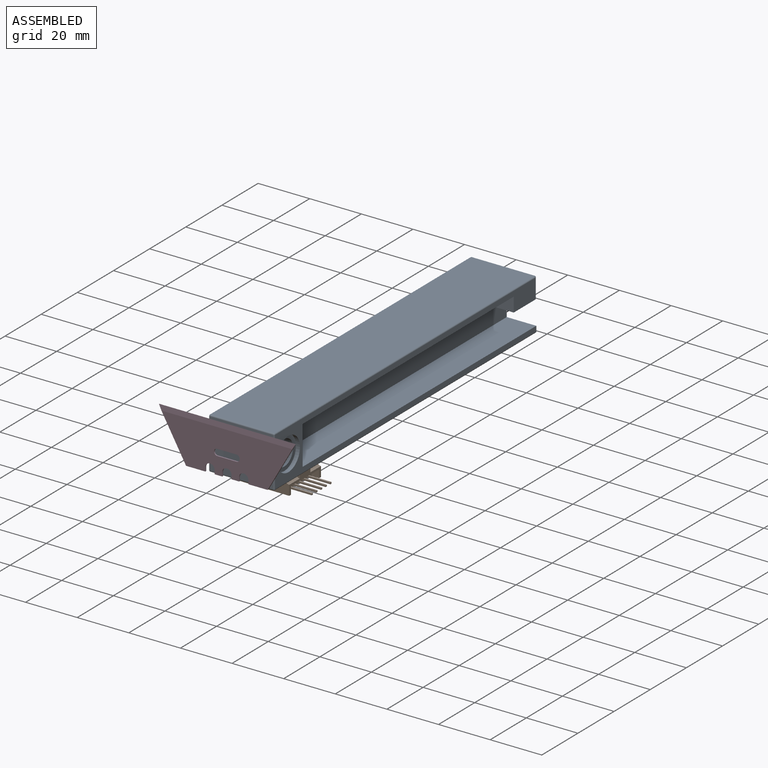
[diagram: assembled view]
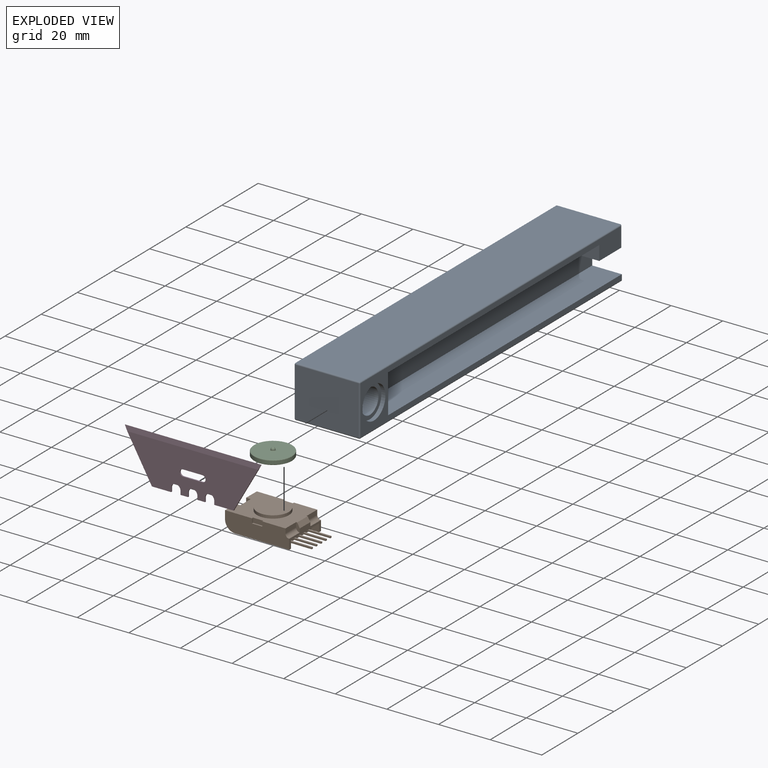
[diagram: exploded view]
GUIDED TOUR — MATED ASSEMBLY (Onshape document edd11f7d41147a7c09eb9f6d, AutoMate assembly edd11f7d41147a7c09eb9f6d_00da61188a9bc0fff5a41f66_b8125065b8a133a79864f5e6_default)

This assembly has 4 components, labeled P0..P3 below (a component is one placed occurrence of a part; the same part can appear more than once), held together by 4 mates. A mate is a constraint between two components; its type names the relative motion it leaves free:
  CYLINDRICAL — leaves both rotation about and translation along the listed axis free,
  PARALLEL — keeps the two listed directions parallel,
  PLANAR — leaves sliding in the plane through the listed point (normal = the listed direction) and rotation about that normal free.
Axis/direction vectors are unit vectors and 'through' points are millimeter coordinates, both in the assembly's world frame.

MATES
  1. CYLINDRICAL "Cylindrical 1": P1 <-> P2, axis (0.000, 0.000, 1.000) through (16.44, 24.86, -26.45) mm
  2. PLANAR "Planar 2": P3 <-> P0, direction (0.000, 1.000, 0.000) through (16.80, -0.68, -15.58) mm
  3. PLANAR "Planar 3": P1 <-> P2, direction (0.000, 0.000, 1.000) through (16.44, 24.86, -26.45) mm
  4. PARALLEL "Parallel 1": P2 <-> P0, direction (0.000, 0.000, 1.000) through (16.44, 24.86, -25.45) mm

ASSEMBLY ORDER
  1. P2 — the base component [order verified]
  2. P1 [order verified]
  3. P0 [order verified]
  4. P3 [order verified]
(P1 verified with a relaxed clearance tolerance: the source model stores slight part interference there.)
Order-tag legend:
  [order verified] — this step's position reverses a verified removal order: the component was checked to insert without passing through the ones already placed.

Of the 4 components, 2 carry the full construction recipe — the FeatureScript program that regenerates the part's solid from scratch; the rest are supplied as boundary geometry only.
Each toured component is shown spotlighted twice — in the assembled view, then in the exploded view, where a leader line traces a displaced component back to its assembled socket (saturated green if recipe-attached, orange if geometry-only; every other component desaturated gray) — followed by its recipe or geometry summary and the mates that hold it.
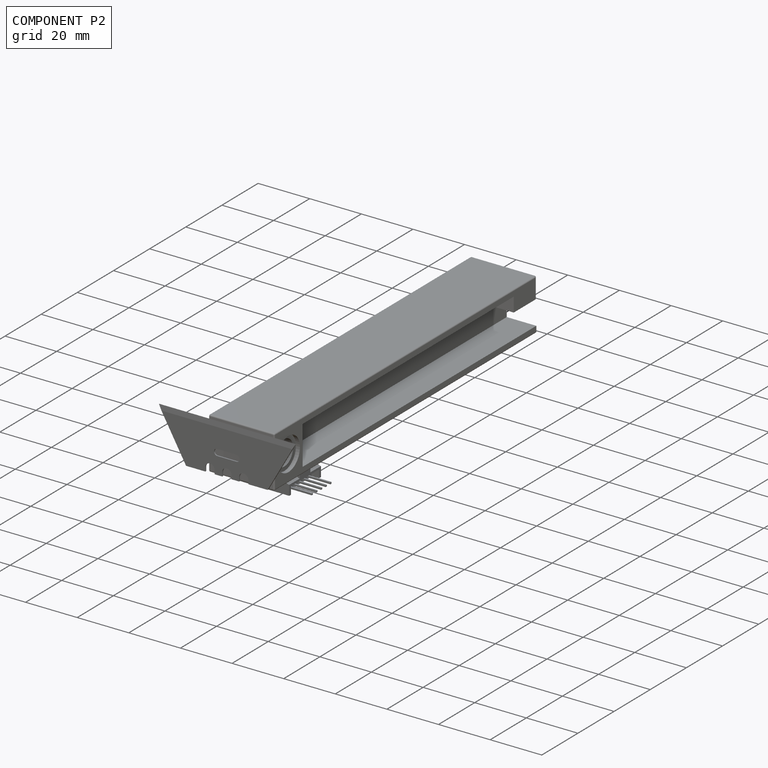
[diagram: component P2 — assembled]
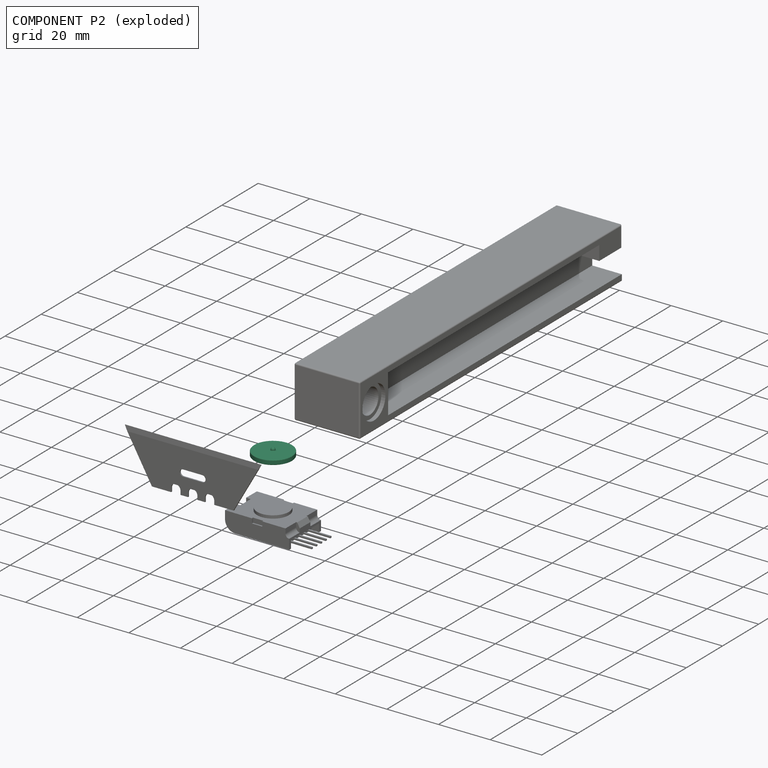
[diagram: component P2 — exploded]
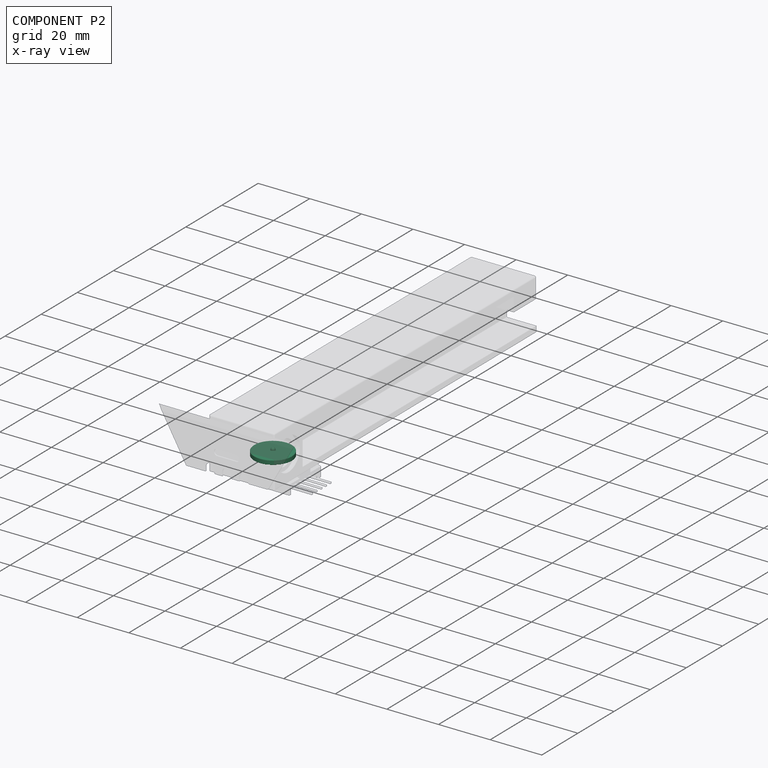
[diagram: component P2 — x-ray view]
COMPONENT P2 — recipe-attached (CADFS 00927021, mesh-verified: the recipe's output STEP matches this component's geometry to below the mesh-comparison resolution (tessellation chordal tolerance ~0.0315 mm)).
Held by: CYLINDRICAL mate "Cylindrical 1" to P1; PLANAR mate "Planar 3" to P1; PARALLEL mate "Parallel 1" to P0.
Construction recipe (FeatureScript — the CAD program that rebuilds this solid; sketch coordinates are in the units given by the * unit suffixes, e.g. mm):

FeatureScript 1549;
import(path : "onshape/std/geometry.fs", version : "1549.0");
import(path : "onshape/std/common.fs", version : "1549.0");
const mm = millimeter;
const VERTEX = EntityType.VERTEX;
const EDGE = EntityType.EDGE;
const FACE = EntityType.FACE;
const BODY = EntityType.BODY;
function v(x, y){return vector(x, y);}
function OD(order){return orderDisambiguation(order);}
function OSD(set){return originalSetDisambiguation(set);}
function TD(topology){return topologyDisambiguation(topology);}
function TDD(query){return trueDependencyDisambiguation(query);}
function sQuery(a, b, c) {return sketchEntityQuery(a, b, c);}

annotation { "Feature Type Name" : "Feature", "Feature Type Description" : "" }
export const myFeature = defineFeature(function(context is Context, id is Id, definition is map)
    precondition{}
    {
        {
            var Q0;
            Q0=qCreatedBy(makeId("Front.planeOp"),FACE);
            var sketch = newSketch(context, id + "F0", { "sketchPlane" : qUnion([Q0])});
            skLineSegment(sketch, "E0", {"start": v(0, 0) * mm, "end": v(0, 1) * mm});
            skLineSegment(sketch, "E1", {"start": v(0, 1) * mm, "end": v(-7.35, 1) * mm});
            skLineSegment(sketch, "E2", {"start": v(-7.35, 1) * mm, "end": v(-7.35, -0.8) * mm});
            skLineSegment(sketch, "E3", {"start": v(-7.35, -0.8) * mm, "end": v(-6.35, -0.8) * mm});
            skLineSegment(sketch, "E4", {"start": v(-6.35, -0.8) * mm, "end": v(-6.35, 0) * mm});
            skLineSegment(sketch, "E5", {"start": v(-6.35, 0) * mm, "end": v(0, 0) * mm});
            skLineSegment(sketch, "E6.bottom", {"start": v(0, 1) * mm, "end": v(-0.8, 1) * mm});
            skLineSegment(sketch, "E6.top", {"start": v(0, 1.4) * mm, "end": v(-0.8, 1.4) * mm});
            skLineSegment(sketch, "E6.left", {"start": v(0, 1) * mm, "end": v(0, 1.4) * mm});
            skLineSegment(sketch, "E6.right", {"start": v(-0.8, 1) * mm, "end": v(-0.8, 1.4) * mm});
            skArc(sketch, "E7", {"start": v(-0.8, 1.4) * mm, "mid": v(-0.57, 1.97) * mm, "end": v(0, 2.2) * mm});
            skLineSegment(sketch, "E8", {"start": v(0, 2.2) * mm, "end": v(0, 1.4) * mm});
            skSolve(sketch);
        }
        {
            var Q0;
            {var subQ2=sQuery(id+"F0.wireOp",EDGE,"E0");Q0=makeQuery(id+"F0.imprint","IMPRINT",FACE,{"disambiguationData":[TD([[makeQuery(id+"F0.imprint","IMPRINT",EDGE,{"derivedFrom":subQ2}),1.0]])]});}
            var Q1;
            {var subQ0=sQuery(id+"F0.wireOp",EDGE,"wYFL7p8j-TeGG-kjCM-6JJ2-xih8vC0nYGVt");Q1=makeQuery(id+"F0.imprint","IMPRINT",FACE,{"disambiguationData":[TD([[makeQuery(id+"F0.imprint","IMPRINT",EDGE,{"derivedFrom":subQ0}),1.0]])]});}
            var Q2;
            Q2=makeQuery(id+"F0.imprint","IMPRINT",FACE,{"disambiguationData":[TD([[makeQuery(id+"F0.imprint","IMPRINT",EDGE,{"derivedFrom":sQuery(id+"F0.wireOp",EDGE,"E6.top")}),1.0]])]});
            var Q3;
            Q3=makeQuery(id+"F0.imprint","IMPRINT",FACE,{"disambiguationData":[TD([[makeQuery(id+"F0.imprint","IMPRINT",EDGE,{"derivedFrom":sQuery(id+"F0.wireOp",EDGE,"E6.top")}),-1.0]])]});
            var Q4;
            Q4=sQuery(id+"F0.wireOp",EDGE,"E0");
            revolve(context, id + "F1", {"entities" : qUnion([Q0, Q1, Q2, Q3]), "axis" : qUnion([Q4]), "revolveType" : RevolveType.FULL, "surfaceOperationType" : NewSurfaceOperationType.NEW});
        }
        {
            var Q0;
            Q0=makeQuery(id+"F1.opRevolve","SWEPT_EDGE",EDGE,{"disambiguationData":[OSD([sQuery(id+"F0.wireOp",EDGE,"E1"),sQuery(id+"F0.wireOp",EDGE,"E2")])]});
            var Q1;
            Q1=makeQuery(id+"F1.opRevolve","SWEPT_EDGE",EDGE,{"disambiguationData":[OSD([sQuery(id+"F0.wireOp",EDGE,"E2"),sQuery(id+"F0.wireOp",EDGE,"E3")])]});
            var Q2;
            Q2=makeQuery(id+"F1.opRevolve","SWEPT_EDGE",EDGE,{"disambiguationData":[OSD([sQuery(id+"F0.wireOp",EDGE,"E3"),sQuery(id+"F0.wireOp",EDGE,"E4")])]});
            fillet(context, id + "F2", {"entities" : qUnion([Q0, Q1, Q2]), "radius" : 0.2 * mm, "tangentPropagation" : true, "allowEdgeOverflow" : false});
        }
        {
            var Q0;
            Q0=makeQuery(id+"F1.opRevolve","SWEPT_EDGE",EDGE,{"disambiguationData":[OSD([sQuery(id+"F0.wireOp",EDGE,"E1"),sQuery(id+"F0.wireOp",EDGE,"E6.right")])]});
            fillet(context, id + "F3", {"entities" : qUnion([Q0]), "radius" : 0.3 * mm, "tangentPropagation" : true, "allowEdgeOverflow" : false});
        }
    });
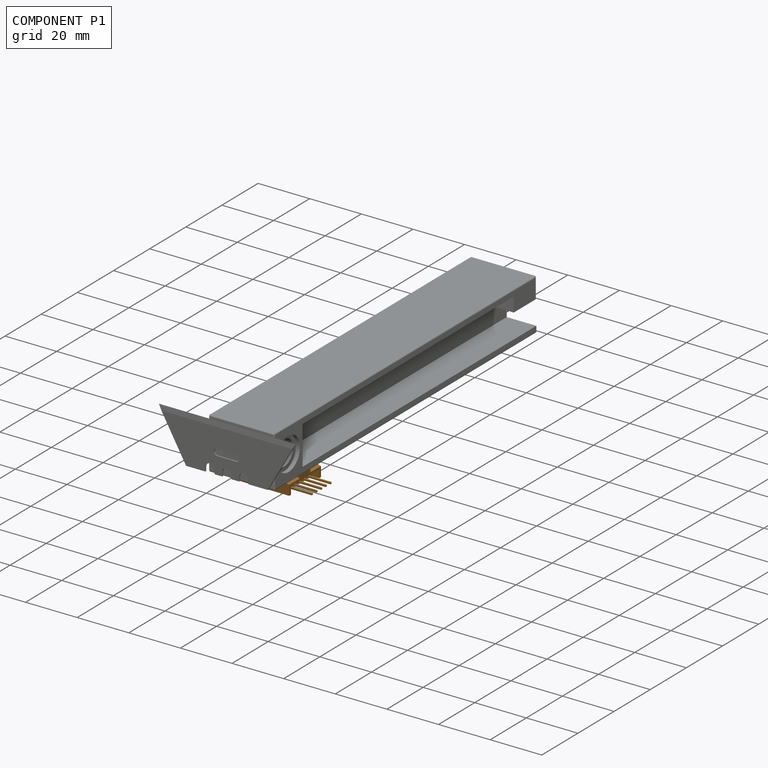
[diagram: component P1 — assembled]
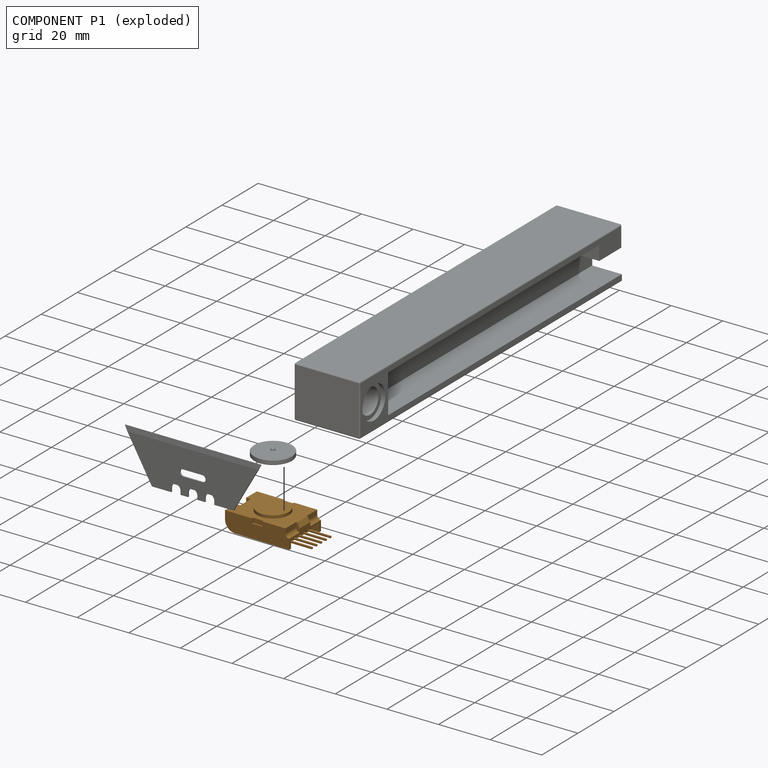
[diagram: component P1 — exploded]
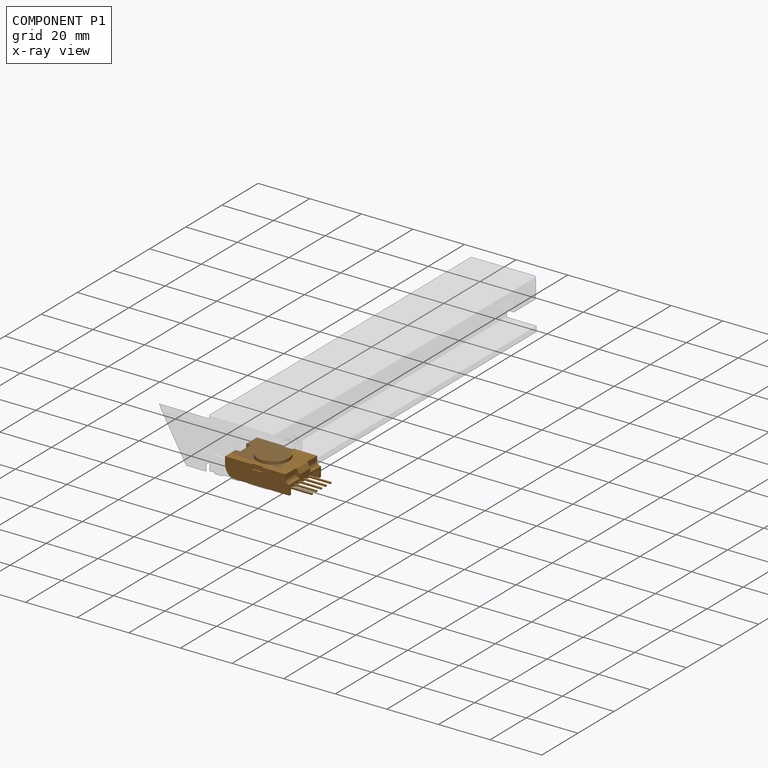
[diagram: component P1 — x-ray view]
COMPONENT P1 — geometry summary (no construction recipe available for this part):
  bounding box: 31.5 x 17.4 x 8.3 mm
  B-rep topology: 1 solid, 58 faces, 300 edges
  volume: 2942 mm^3 (65% of its bounding box)
  symmetry: mirror-symmetric across its y mid-plane
Held by: CYLINDRICAL mate "Cylindrical 1" to P2; PLANAR mate "Planar 3" to P2.
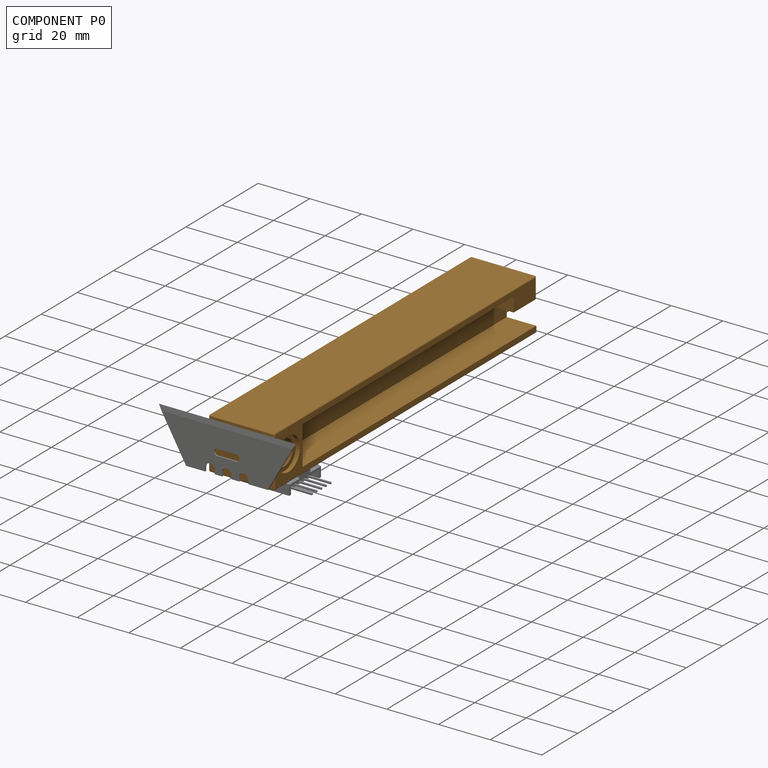
[diagram: component P0 — assembled]
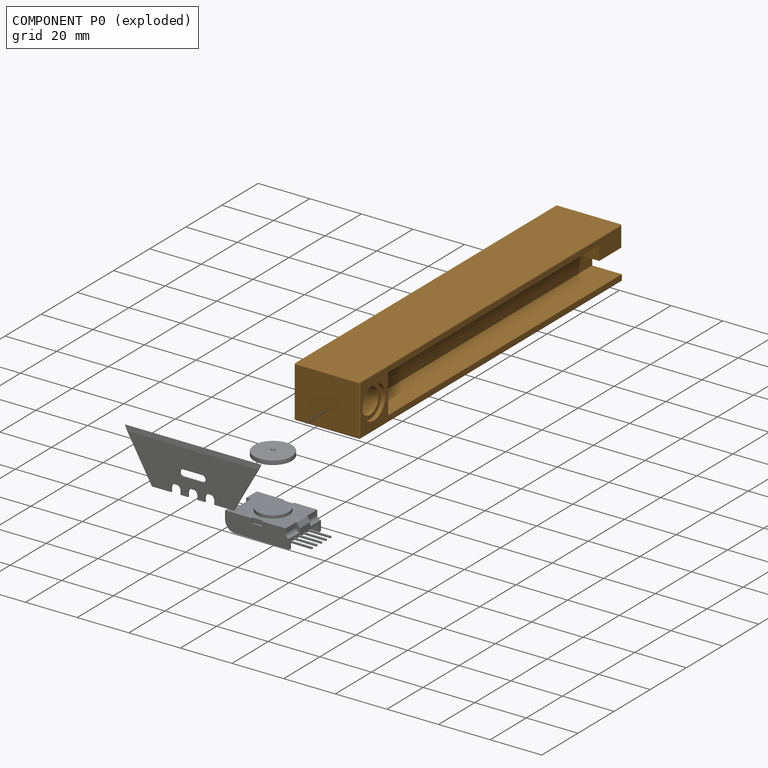
[diagram: component P0 — exploded]
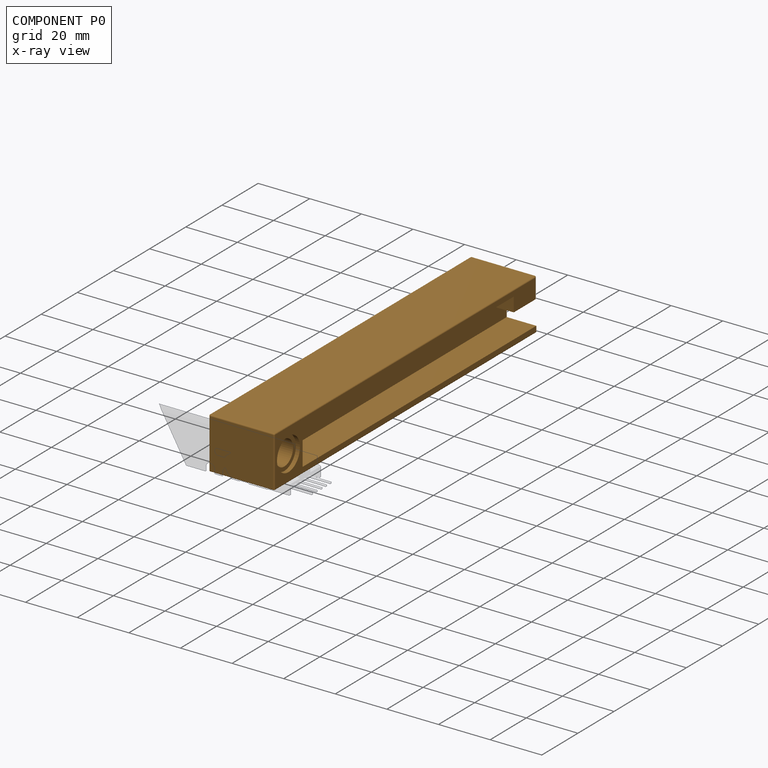
[diagram: component P0 — x-ray view]
COMPONENT P0 — geometry summary (no construction recipe available for this part):
  bounding box: 145.0 x 25.4 x 20.0 mm
  B-rep topology: 1 solid, 52 faces, 242 edges
  volume: 28611 mm^3 (39% of its bounding box)
  symmetry: mirror-symmetric across its x mid-plane
Held by: PLANAR mate "Planar 2" to P3; PARALLEL mate "Parallel 1" to P2.
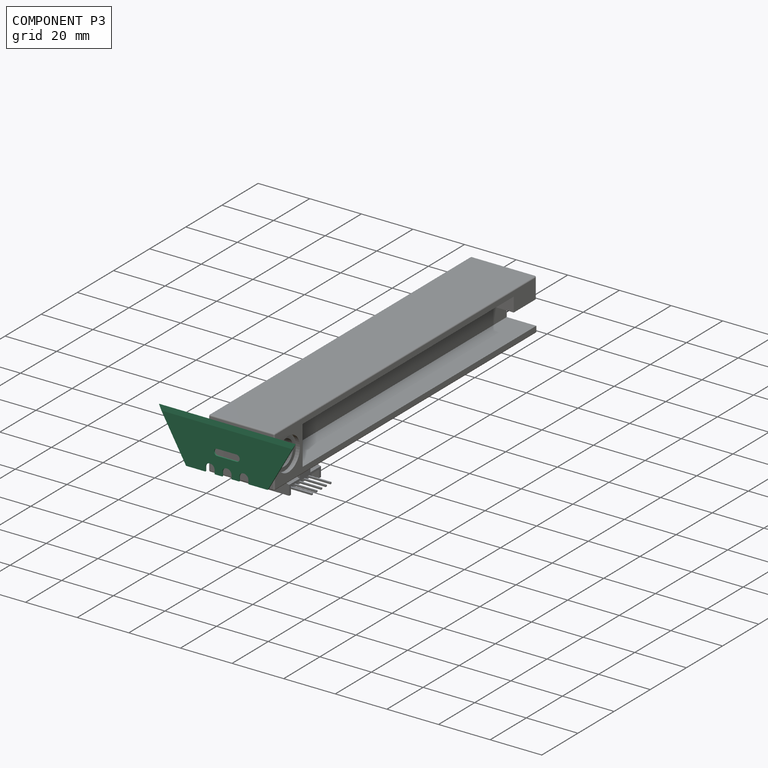
[diagram: component P3 — assembled]
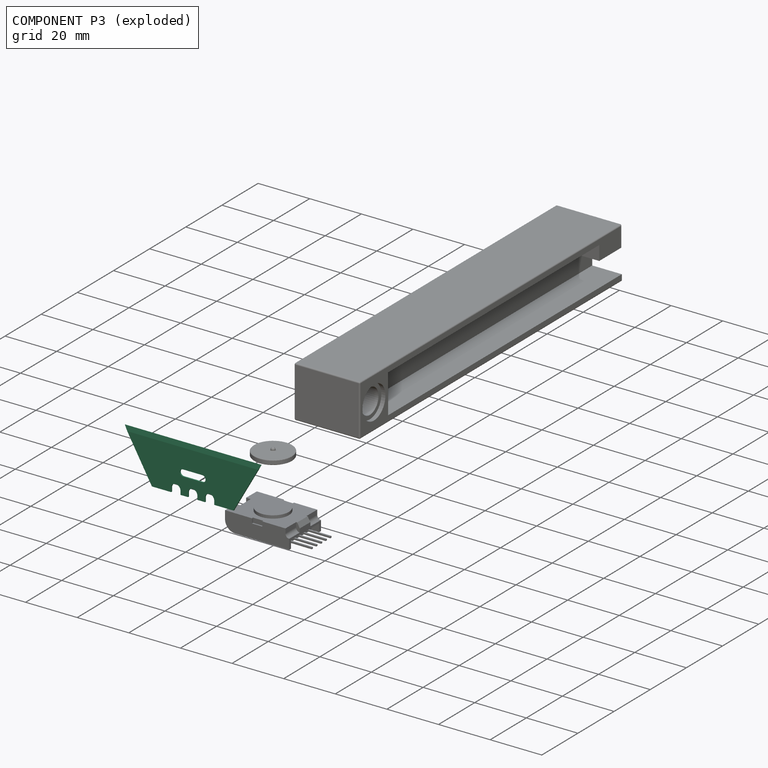
[diagram: component P3 — exploded]
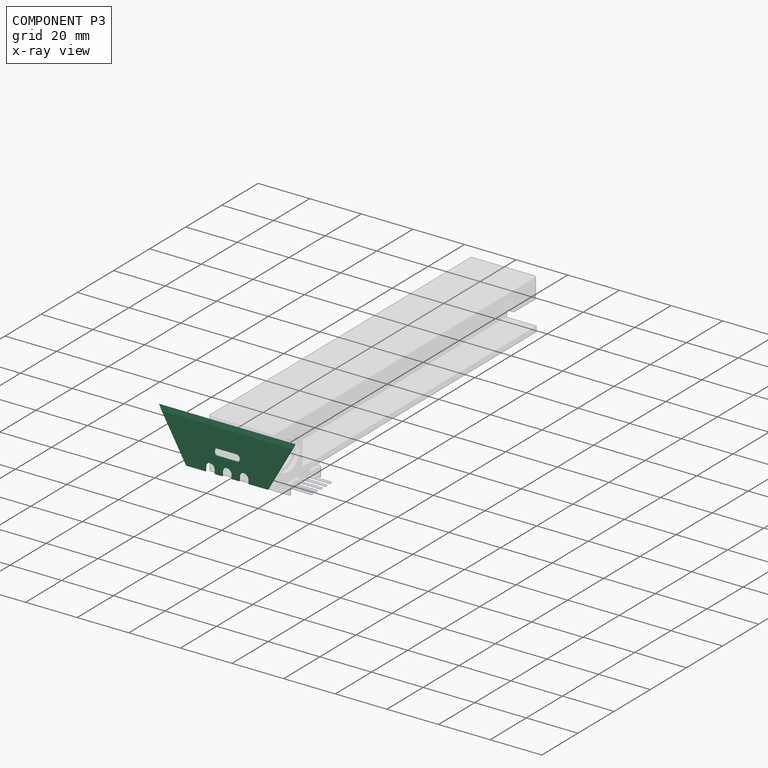
[diagram: component P3 — x-ray view]
COMPONENT P3 — recipe-attached (CADFS 00927025, mesh-verified: the recipe's output STEP matches this component's geometry to below the mesh-comparison resolution (tessellation chordal tolerance ~0.0844 mm)).
Held by: PLANAR mate "Planar 2" to P0.
Construction recipe (FeatureScript — the CAD program that rebuilds this solid; sketch coordinates are in the units given by the * unit suffixes, e.g. mm):

FeatureScript 1549;
import(path : "onshape/std/geometry.fs", version : "1549.0");
import(path : "onshape/std/common.fs", version : "1549.0");
const mm = millimeter;
const VERTEX = EntityType.VERTEX;
const EDGE = EntityType.EDGE;
const FACE = EntityType.FACE;
const BODY = EntityType.BODY;
function v(x, y){return vector(x, y);}
function OD(order){return orderDisambiguation(order);}
function OSD(set){return originalSetDisambiguation(set);}
function TD(topology){return topologyDisambiguation(topology);}
function TDD(query){return trueDependencyDisambiguation(query);}
function sQuery(a, b, c) {return sketchEntityQuery(a, b, c);}

annotation { "Feature Type Name" : "Feature", "Feature Type Description" : "" }
export const myFeature = defineFeature(function(context is Context, id is Id, definition is map)
    precondition{}
    {
        {
            var Q0;
            Q0=qCreatedBy(makeId("Front.planeOp"),FACE);
            var sketch = newSketch(context, id + "F0", { "sketchPlane" : qUnion([Q0])});
            skLineSegment(sketch, "E0", {"start": v(0, 0) * mm, "end": v(53, 0) * mm});
            skLineSegment(sketch, "E1", {"start": v(53, 0) * mm, "end": v(42.3, 18.8) * mm});
            skLineSegment(sketch, "E2", {"start": v(42.3, 18.8) * mm, "end": v(10.7, 18.8) * mm});
            skLineSegment(sketch, "E3", {"start": v(10.7, 18.8) * mm, "end": v(0, 0) * mm});
            skLineSegment(sketch, "E4", {"start": v(26.5, 18.8) * mm, "end": v(26.5, 0) * mm, "construction": true});
            skLineSegment(sketch, "E5.bottom", {"start": v(22.8, 12.14) * mm, "end": v(30.2, 12.14) * mm});
            skLineSegment(sketch, "E5.top", {"start": v(22.8, 9.62) * mm, "end": v(30.2, 9.62) * mm});
            skLineSegment(sketch, "E5.left", {"start": v(21.53, 10.88) * mm, "end": v(21.53, 10.88) * mm});
            skLineSegment(sketch, "E5.right", {"start": v(31.47, 10.88) * mm, "end": v(31.47, 10.88) * mm});
            skLineSegment(sketch, "E6", {"start": v(26.5, 12.14) * mm, "end": v(26.5, 18.8) * mm, "construction": true});
            skPoint(sketch, "E7.visualSharp", {"position": v(31.47, 12.14) * mm});
            skArc(sketch, "E7.filletArc", {"start": v(31.47, 10.88) * mm, "mid": v(31.1, 11.77) * mm, "end": v(30.2, 12.14) * mm});
            skPoint(sketch, "E8.visualSharp", {"position": v(31.47, 9.62) * mm});
            skArc(sketch, "E8.filletArc", {"start": v(30.2, 9.62) * mm, "mid": v(31.1, 9.99) * mm, "end": v(31.47, 10.88) * mm});
            skPoint(sketch, "E9.visualSharp", {"position": v(21.53, 12.14) * mm});
            skArc(sketch, "E9.filletArc", {"start": v(22.8, 12.14) * mm, "mid": v(21.9, 11.77) * mm, "end": v(21.53, 10.88) * mm});
            skPoint(sketch, "E10.visualSharp", {"position": v(21.53, 9.62) * mm});
            skArc(sketch, "E10.filletArc", {"start": v(21.53, 10.88) * mm, "mid": v(21.9, 9.99) * mm, "end": v(22.8, 9.62) * mm});
            skLineSegment(sketch, "E11.bottom", {"start": v(24.7, 18.8) * mm, "end": v(28.3, 18.8) * mm});
            skLineSegment(sketch, "E11.top", {"start": v(26.5, 15.5) * mm, "end": v(26.5, 15.5) * mm});
            skLineSegment(sketch, "E11.left", {"start": v(24.7, 18.8) * mm, "end": v(24.7, 17.3) * mm});
            skLineSegment(sketch, "E11.right", {"start": v(28.3, 18.8) * mm, "end": v(28.3, 17.3) * mm});
            skPoint(sketch, "E12.visualSharp", {"position": v(24.7, 15.5) * mm});
            skArc(sketch, "E12.filletArc", {"start": v(24.7, 17.3) * mm, "mid": v(25.23, 16.03) * mm, "end": v(26.5, 15.5) * mm});
            skPoint(sketch, "E13.visualSharp", {"position": v(28.3, 15.5) * mm});
            skArc(sketch, "E13.filletArc", {"start": v(26.5, 15.5) * mm, "mid": v(27.77, 16.03) * mm, "end": v(28.3, 17.3) * mm});
            skLineSegment(sketch, "E14", {"start": v(26.5, 18.8) * mm, "end": v(26.5, 12.14) * mm, "construction": true});
            skLineSegment(sketch, "E15.bottom", {"start": v(31.24, 18.8) * mm, "end": v(34.84, 18.8) * mm});
            skLineSegment(sketch, "E15.top", {"start": v(33.04, 15.5) * mm, "end": v(33.04, 15.5) * mm});
            skLineSegment(sketch, "E15.left", {"start": v(31.24, 18.8) * mm, "end": v(31.24, 17.3) * mm});
            skLineSegment(sketch, "E15.right", {"start": v(34.84, 18.8) * mm, "end": v(34.84, 17.3) * mm});
            skLineSegment(sketch, "E16.bottom", {"start": v(18.16, 18.8) * mm, "end": v(21.76, 18.8) * mm});
            skLineSegment(sketch, "E16.top", {"start": v(19.96, 15.5) * mm, "end": v(19.96, 15.5) * mm});
            skLineSegment(sketch, "E16.left", {"start": v(18.16, 18.8) * mm, "end": v(18.16, 17.3) * mm});
            skLineSegment(sketch, "E16.right", {"start": v(21.76, 18.8) * mm, "end": v(21.76, 17.3) * mm});
            skPoint(sketch, "E17.visualSharp", {"position": v(18.16, 15.5) * mm});
            skArc(sketch, "E17.filletArc", {"start": v(18.16, 17.3) * mm, "mid": v(18.69, 16.03) * mm, "end": v(19.96, 15.5) * mm});
            skPoint(sketch, "E18.visualSharp", {"position": v(21.76, 15.5) * mm});
            skArc(sketch, "E18.filletArc", {"start": v(19.96, 15.5) * mm, "mid": v(21.23, 16.03) * mm, "end": v(21.76, 17.3) * mm});
            skPoint(sketch, "E19.visualSharp", {"position": v(31.24, 15.5) * mm});
            skArc(sketch, "E19.filletArc", {"start": v(31.24, 17.3) * mm, "mid": v(31.77, 16.03) * mm, "end": v(33.04, 15.5) * mm});
            skPoint(sketch, "E20.visualSharp", {"position": v(34.84, 15.5) * mm});
            skArc(sketch, "E20.filletArc", {"start": v(33.04, 15.5) * mm, "mid": v(34.31, 16.03) * mm, "end": v(34.84, 17.3) * mm});
            skLineSegment(sketch, "E21", {"start": v(51.86, 2) * mm, "end": v(1.14, 2) * mm, "construction": true});
            skLineSegment(sketch, "E22", {"start": v(51.86, 2) * mm, "end": v(51.86, 0) * mm, "construction": true});
            skSolve(sketch);
        }
        {
            var Q0;
            Q0=makeQuery(id+"F0.imprint","IMPRINT",FACE,{"disambiguationData":[TD([[makeQuery(id+"F0.imprint","IMPRINT",EDGE,{"derivedFrom":sQuery(id+"F0.wireOp",EDGE,"E0")}),1.0]])]});
            extrude(context, id + "F1", {"entities" : qUnion([Q0]), "depth" : 0.5 * mm, "offsetDistance" : 25 * mm});
        }
        {
            var Q0;
            Q0=makeQuery(id+"F1.opExtrude","CAP_FACE",FACE,{"disambiguationData":[OSD([sQuery(id+"F0.wireOp",EDGE,"E0"),sQuery(id+"F0.wireOp",EDGE,"E1"),sQuery(id+"F0.wireOp",EDGE,"E2"),sQuery(id+"F0.wireOp",EDGE,"E3"),sQuery(id+"F0.wireOp",EDGE,"E5.bottom"),sQuery(id+"F0.wireOp",EDGE,"E5.top"),sQuery(id+"F0.wireOp",EDGE,"E7.filletArc"),sQuery(id+"F0.wireOp",EDGE,"E8.filletArc"),sQuery(id+"F0.wireOp",EDGE,"E9.filletArc"),sQuery(id+"F0.wireOp",EDGE,"E10.filletArc"),sQuery(id+"F0.wireOp",EDGE,"E11.left"),sQuery(id+"F0.wireOp",EDGE,"E11.right"),sQuery(id+"F0.wireOp",EDGE,"E12.filletArc"),sQuery(id+"F0.wireOp",EDGE,"E13.filletArc"),sQuery(id+"F0.wireOp",EDGE,"E15.left"),sQuery(id+"F0.wireOp",EDGE,"E15.right"),sQuery(id+"F0.wireOp",EDGE,"E16.left"),sQuery(id+"F0.wireOp",EDGE,"E16.right"),sQuery(id+"F0.wireOp",EDGE,"E17.filletArc"),sQuery(id+"F0.wireOp",EDGE,"E18.filletArc"),sQuery(id+"F0.wireOp",EDGE,"E19.filletArc"),sQuery(id+"F0.wireOp",EDGE,"E20.filletArc")])],"isStart":false});
            var sketch = newSketch(context, id + "F2", { "sketchPlane" : qUnion([Q0])});
            skLineSegment(sketch, "E23.0", {"start": v(51.86, 2) * mm, "end": v(1.14, 2) * mm, "construction": true});
            skLineSegment(sketch, "E23.1", {"start": v(51.86, 2) * mm, "end": v(51.86, 0) * mm, "construction": true});
            skSolve(sketch);
        }
        {
            var Q0;
            Q0=qCreatedBy(makeId("Right.planeOp"),FACE);
            var sketch = newSketch(context, id + "F3", { "sketchPlane" : qUnion([Q0])});
            skPoint(sketch, "E24.0", {"position": v(0, 2) * mm});
            skPoint(sketch, "E24.1", {"position": v(-0.5, 2) * mm});
            skLineSegment(sketch, "E25.0", {"start": v(-0.5, 0) * mm, "end": v(0, 0) * mm});
            skLineSegment(sketch, "E26", {"start": v(0, 2) * mm, "end": v(-0.25, 0) * mm});
            skLineSegment(sketch, "E27", {"start": v(-0.25, 0) * mm, "end": v(-0.5, 2) * mm});
            skLineSegment(sketch, "E28", {"start": v(-0.5, 2) * mm, "end": v(-0.5, 0) * mm});
            skLineSegment(sketch, "E29", {"start": v(0, 2) * mm, "end": v(0, 0) * mm});
            skSolve(sketch);
        }
        {
            var Q0;
            {var subQ2=sQuery(id+"F3.wireOp",EDGE,"E26");Q0=makeQuery(id+"F3.imprint","IMPRINT",FACE,{"disambiguationData":[TD([[makeQuery(id+"F3.imprint","IMPRINT",EDGE,{"derivedFrom":subQ2}),1.0]])]});}
            var Q1;
            {var subQ2=sQuery(id+"F3.wireOp",EDGE,"E27");Q1=makeQuery(id+"F3.imprint","IMPRINT",FACE,{"disambiguationData":[TD([[makeQuery(id+"F3.imprint","IMPRINT",EDGE,{"derivedFrom":subQ2}),1.0]])]});}
            extrude(context, id + "F4", {"entities" : qUnion([Q0, Q1]), "operationType" : NewBodyOperationType.REMOVE, "endBound" : BoundingType.THROUGH_ALL, "depth" : 25 * mm, "offsetDistance" : 25 * mm});
        }
    });
PROVENANCE & LICENSES
Assembly (occurrences, transforms, mates, per-part STEP geometry): AutoMate dataset, Zenodo record 7776208, CC0.
Construction recipes: CADFS (HuggingFace VladPyatov/CADFS, CC-BY-4.0, layered over the ABC dataset), FeatureScript reconstruction programs keyed by ABC model id.
Join: ABC meta listings map ABC model id -> Onshape documentId; within a shared document, parts are matched by geometric signature (bounding-box dims + volume at 0.1% relative tolerance, exact B-rep face/solid counts).
Verification: 2 of this assembly's 4 components carry a recipe attachment, and every attachment is mesh-verified: the CADFS STEP and the AutoMate member STEP were compared as meshes in their shared local frame (symmetric sampled-point-to-mesh distance); worst across the 2 attachments: below the mesh-comparison resolution (tessellation chordal tolerance ~0.0844 mm) on a 56 mm part.
Renders: orthographic iso camera (az 35 / el 25); the floor grid conveys scale (grid pitch printed in each image; no ruler). In the exploded view each component is displaced by its stored offset vector: the offsets alone carry the explosion direction (mate normal/axis signs are not orientation cues and do not encode it), and separation distances are assigned per mate-chain, not proportionally to assembly-order depth.
